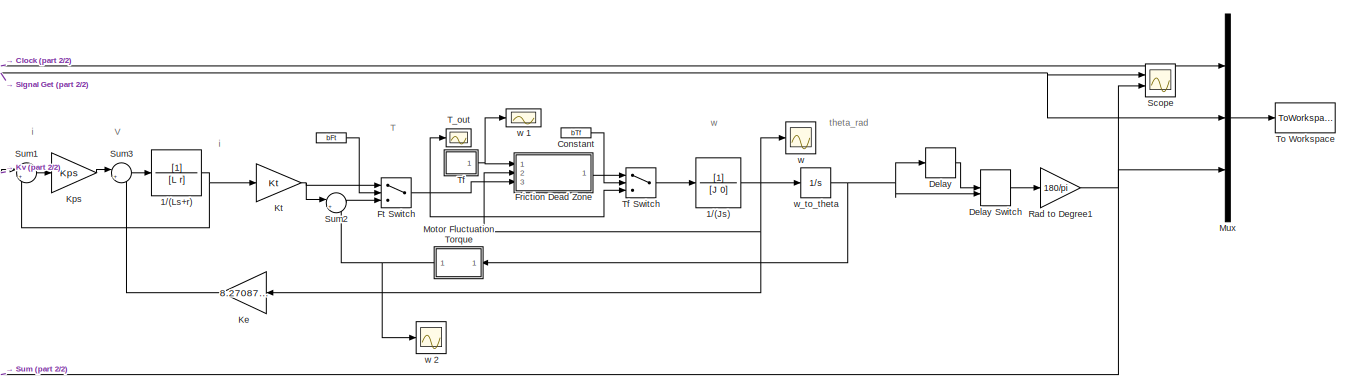
[diagram: root canvas - part 1/2, center side, full height]
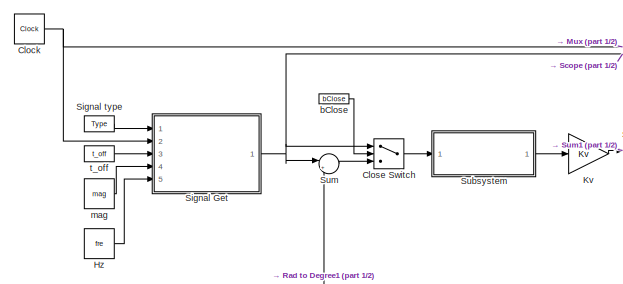
[diagram: root canvas - part 2/2, middle left region]
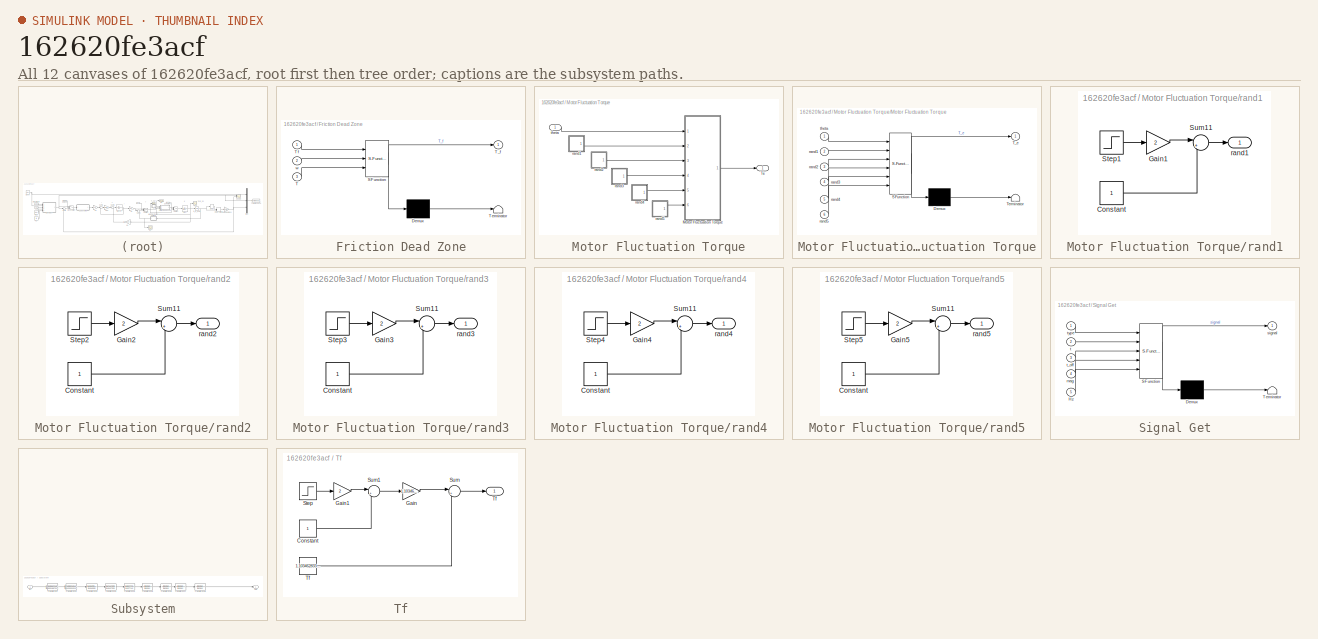
[diagram: thumbnail index - all 12 canvases of the model, root first then tree order]
MODEL slx_162620fe3acf
KIND model
CONFIG AbsTol = auto
CONFIG EnableMultiTasking = off
CONFIG FixedStep = 0.0005
CONFIG MaxStep = auto
CONFIG MinStep = auto
CONFIG RelTol = 1e-3
CONFIG SampleTimeConstraint = Unconstrained
CONFIG Solver = FixedStepAuto
CONFIG SolverName = FixedStepAuto
CONFIG StartTime = 0.0
CONFIG StopTime = 10
BLOCK [Constant]  
  Value = bFt
BLOCK [ManualSwitch]  Delay Switch
  CurrentSetting = 0
BLOCK [Constant]  bClose
  Value = bClose
BLOCK [TransferFcn] 1//(Js)
  Denominator = [J 0]
BLOCK [TransferFcn] 1//(Ls+r)
  Denominator = [L r]
BLOCK [Clock] Clock
  DisplayTime = on
BLOCK [Switch] Close Switch
  Criteria = u2 > Threshold
  InputSameDT = off
  SaturateOnIntegerOverflow = off
BLOCK [Constant] Constant
  Value = bTf
BLOCK [TransportDelay] Delay
  DelayTime = 0.003763900000000
  Ports = [1, 1]
BLOCK [SubSystem] Friction Dead Zone
  ErrorFcn = Stateflow.Translate.translate
  PermitHierarchicalResolution = ExplicitOnly
  Ports = [3, 1]
  RequestExecContextInheritance = off
  SFBlockType = MATLAB Function
  TreatAsAtomicUnit = on
  Variant = off
BLOCK [Demux] Friction Dead Zone/ Demux 
  Outputs = 1
  Ports = [1, 1]
BLOCK [S-Function] Friction Dead Zone/ SFunction 
  EnableBusSupport = on
  FunctionName = sf_sfun
  PortCounts = [3 2]
  Ports = [3, 2]
  SFcnIsStateOwnerBlock = off
  SFunctionDeploymentMode = off
  Tag = Stateflow S-Function Turntable_close 2
BLOCK [Terminator] Friction Dead Zone/ Terminator 
BLOCK [Inport] Friction Dead Zone/T
  IconDisplay = Port number
  Port = 3
BLOCK [Outport] Friction Dead Zone/T_f
  IconDisplay = Port number
BLOCK [Inport] Friction Dead Zone/Tf
  IconDisplay = Port number
BLOCK [Inport] Friction Dead Zone/w
  IconDisplay = Port number
  Port = 2
BLOCK [Switch] Ft Switch
  Criteria = u2 > Threshold
  InputSameDT = off
  SaturateOnIntegerOverflow = off
BLOCK [Constant] Hz
  Value = fre
BLOCK [Gain] Ke
  Gain = 8.270875400213757
  OutDataTypeStr = Inherit: Inherit via internal rule
  ParamDataTypeStr = Inherit: Inherit via internal rule
  SaturateOnIntegerOverflow = off
BLOCK [Gain] Kps
  Gain = Kps
  OutDataTypeStr = Inherit: Inherit via internal rule
  ParamDataTypeStr = Inherit: Inherit via internal rule
  SaturateOnIntegerOverflow = off
BLOCK [Gain] Kt
  Gain = Kt
  OutDataTypeStr = Inherit: Inherit via internal rule
  ParamDataTypeStr = Inherit: Inherit via internal rule
  SaturateOnIntegerOverflow = off
BLOCK [Gain] Kv
  Gain = Kv
  OutDataTypeStr = Inherit: Inherit via internal rule
  ParamDataTypeStr = Inherit: Inherit via internal rule
  SaturateOnIntegerOverflow = off
BLOCK [SubSystem] Motor Fluctuation Torque
  Ports = [1, 1]
  RequestExecContextInheritance = off
  Variant = off
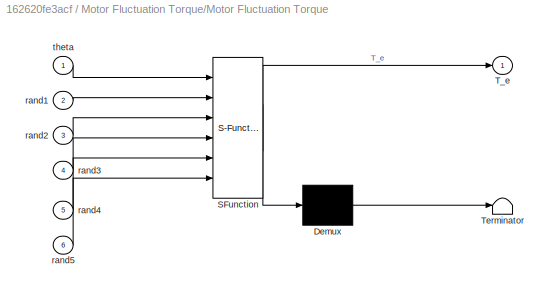
BLOCK [SubSystem] Motor Fluctuation Torque/Motor Fluctuation Torque
  ErrorFcn = Stateflow.Translate.translate
  PermitHierarchicalResolution = ExplicitOnly
  Ports = [6, 1]
  RequestExecContextInheritance = off
  SFBlockType = MATLAB Function
  TreatAsAtomicUnit = on
  Variant = off
BLOCK [Demux] Motor Fluctuation Torque/Motor Fluctuation Torque/ Demux 
  Outputs = 1
  Ports = [1, 1]
BLOCK [S-Function] Motor Fluctuation Torque/Motor Fluctuation Torque/ SFunction 
  EnableBusSupport = on
  FunctionName = sf_sfun
  PortCounts = [6 2]
  Ports = [6, 2]
  SFcnIsStateOwnerBlock = off
  SFunctionDeploymentMode = off
  Tag = Stateflow S-Function Turntable_close 5
BLOCK [Terminator] Motor Fluctuation Torque/Motor Fluctuation Torque/ Terminator 
BLOCK [Outport] Motor Fluctuation Torque/Motor Fluctuation Torque/T_e
  IconDisplay = Port number
BLOCK [Inport] Motor Fluctuation Torque/Motor Fluctuation Torque/rand1
  IconDisplay = Port number
  Port = 2
BLOCK [Inport] Motor Fluctuation Torque/Motor Fluctuation Torque/rand2
  IconDisplay = Port number
  Port = 3
BLOCK [Inport] Motor Fluctuation Torque/Motor Fluctuation Torque/rand3
  IconDisplay = Port number
  Port = 4
BLOCK [Inport] Motor Fluctuation Torque/Motor Fluctuation Torque/rand4
  IconDisplay = Port number
  Port = 5
BLOCK [Inport] Motor Fluctuation Torque/Motor Fluctuation Torque/rand5
  IconDisplay = Port number
  Port = 6
BLOCK [Inport] Motor Fluctuation Torque/Motor Fluctuation Torque/theta
  IconDisplay = Port number
BLOCK [Outport] Motor Fluctuation Torque/Te
  IconDisplay = Port number
BLOCK [SubSystem] Motor Fluctuation Torque/rand1
  Ports = [0, 1]
  RequestExecContextInheritance = off
  Variant = off
BLOCK [Constant] Motor Fluctuation Torque/rand1/Constant
BLOCK [Gain] Motor Fluctuation Torque/rand1/Gain1
  Gain = 2
  OutDataTypeStr = Inherit: Inherit via internal rule
  ParamDataTypeStr = Inherit: Inherit via internal rule
  SaturateOnIntegerOverflow = off
BLOCK [Step] Motor Fluctuation Torque/rand1/Step1
  After = rand
  SampleTime = 0
  Time = 0
BLOCK [Sum] Motor Fluctuation Torque/rand1/Sum11
  IconShape = round
  InputSameDT = off
  Inputs = |+-
  OutDataTypeStr = Inherit: Inherit via internal rule
  Ports = [2, 1]
  SaturateOnIntegerOverflow = off
BLOCK [Outport] Motor Fluctuation Torque/rand1/rand1
  IconDisplay = Port number
BLOCK [SubSystem] Motor Fluctuation Torque/rand2
  Ports = [0, 1]
  RequestExecContextInheritance = off
  Variant = off
BLOCK [Constant] Motor Fluctuation Torque/rand2/Constant
BLOCK [Gain] Motor Fluctuation Torque/rand2/Gain2
  Gain = 2
  OutDataTypeStr = Inherit: Inherit via internal rule
  ParamDataTypeStr = Inherit: Inherit via internal rule
  SaturateOnIntegerOverflow = off
BLOCK [Step] Motor Fluctuation Torque/rand2/Step2
  After = rand
  SampleTime = 0
  Time = 0
BLOCK [Sum] Motor Fluctuation Torque/rand2/Sum11
  IconShape = round
  InputSameDT = off
  Inputs = |+-
  OutDataTypeStr = Inherit: Inherit via internal rule
  Ports = [2, 1]
  SaturateOnIntegerOverflow = off
BLOCK [Outport] Motor Fluctuation Torque/rand2/rand2
  IconDisplay = Port number
BLOCK [SubSystem] Motor Fluctuation Torque/rand3
  Ports = [0, 1]
  RequestExecContextInheritance = off
  Variant = off
BLOCK [Constant] Motor Fluctuation Torque/rand3/Constant
BLOCK [Gain] Motor Fluctuation Torque/rand3/Gain3
  Gain = 2
  OutDataTypeStr = Inherit: Inherit via internal rule
  ParamDataTypeStr = Inherit: Inherit via internal rule
  SaturateOnIntegerOverflow = off
BLOCK [Step] Motor Fluctuation Torque/rand3/Step3
  After = rand
  SampleTime = 0
  Time = 0
BLOCK [Sum] Motor Fluctuation Torque/rand3/Sum11
  IconShape = round
  InputSameDT = off
  Inputs = |+-
  OutDataTypeStr = Inherit: Inherit via internal rule
  Ports = [2, 1]
  SaturateOnIntegerOverflow = off
BLOCK [Outport] Motor Fluctuation Torque/rand3/rand3
  IconDisplay = Port number
BLOCK [SubSystem] Motor Fluctuation Torque/rand4
  Ports = [0, 1]
  RequestExecContextInheritance = off
  Variant = off
BLOCK [Constant] Motor Fluctuation Torque/rand4/Constant
BLOCK [Gain] Motor Fluctuation Torque/rand4/Gain4
  Gain = 2
  OutDataTypeStr = Inherit: Inherit via internal rule
  ParamDataTypeStr = Inherit: Inherit via internal rule
  SaturateOnIntegerOverflow = off
BLOCK [Step] Motor Fluctuation Torque/rand4/Step4
  After = rand
  SampleTime = 0
  Time = 0
BLOCK [Sum] Motor Fluctuation Torque/rand4/Sum11
  IconShape = round
  InputSameDT = off
  Inputs = |+-
  OutDataTypeStr = Inherit: Inherit via internal rule
  Ports = [2, 1]
  SaturateOnIntegerOverflow = off
BLOCK [Outport] Motor Fluctuation Torque/rand4/rand4
  IconDisplay = Port number
BLOCK [SubSystem] Motor Fluctuation Torque/rand5
  Ports = [0, 1]
  RequestExecContextInheritance = off
  Variant = off
BLOCK [Constant] Motor Fluctuation Torque/rand5/Constant
BLOCK [Gain] Motor Fluctuation Torque/rand5/Gain5
  Gain = 2
  OutDataTypeStr = Inherit: Inherit via internal rule
  ParamDataTypeStr = Inherit: Inherit via internal rule
  SaturateOnIntegerOverflow = off
BLOCK [Step] Motor Fluctuation Torque/rand5/Step5
  After = rand
  SampleTime = 0
  Time = 0
BLOCK [Sum] Motor Fluctuation Torque/rand5/Sum11
  IconShape = round
  InputSameDT = off
  Inputs = |+-
  OutDataTypeStr = Inherit: Inherit via internal rule
  Ports = [2, 1]
  SaturateOnIntegerOverflow = off
BLOCK [Outport] Motor Fluctuation Torque/rand5/rand5
  IconDisplay = Port number
BLOCK [Inport] Motor Fluctuation Torque/theta
  IconDisplay = Port number
BLOCK [Mux] Mux
  DisplayOption = bar
  Inputs = 3
  Ports = [3, 1]
BLOCK [Gain] Rad to Degree1
  Gain = 180/pi
  OutDataTypeStr = Inherit: Inherit via internal rule
  ParamDataTypeStr = Inherit: Inherit via internal rule
  SaturateOnIntegerOverflow = off
BLOCK [Scope] Scope
  NumInputPorts = 2
  Ports = [2]
  ScopeSpecificationString = Simulink.scopes.TimeScopeBlockCfg('CurrentConfiguration', extmgr.ConfigurationSet(extmgr.Configuration('Core','General UI',true),extmgr.Configuration('Core','Source UI',true),extmgr.Configuration('Sources','WiredSimulink',true,'DataLoggingVariableName','ScopeData1'),extmgr.Configuration('Visuals','Time Domain',true,'SerializedDisplays',{struct('MinYLimReal','-0.7726','MaxYLimReal','6.95336','YLabe...<+1453ch>
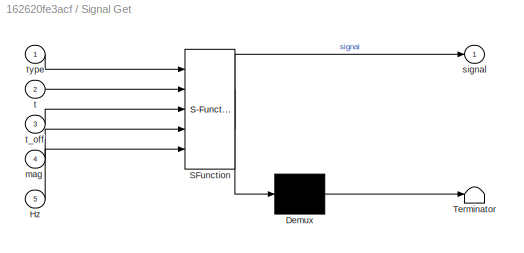
BLOCK [SubSystem] Signal Get
  ErrorFcn = Stateflow.Translate.translate
  PermitHierarchicalResolution = ExplicitOnly
  Ports = [5, 1]
  RequestExecContextInheritance = off
  SFBlockType = MATLAB Function
  TreatAsAtomicUnit = on
  Variant = off
BLOCK [Demux] Signal Get/ Demux 
  Outputs = 1
  Ports = [1, 1]
BLOCK [S-Function] Signal Get/ SFunction 
  EnableBusSupport = on
  FunctionName = sf_sfun
  PortCounts = [5 2]
  Ports = [5, 2]
  SFcnIsStateOwnerBlock = off
  SFunctionDeploymentMode = off
  Tag = Stateflow S-Function Turntable_close 1
BLOCK [Terminator] Signal Get/ Terminator 
BLOCK [Inport] Signal Get/Hz
  IconDisplay = Port number
  Port = 5
BLOCK [Inport] Signal Get/mag
  IconDisplay = Port number
  Port = 4
BLOCK [Outport] Signal Get/signal
  IconDisplay = Port number
BLOCK [Inport] Signal Get/t
  IconDisplay = Port number
  Port = 2
BLOCK [Inport] Signal Get/t_off
  IconDisplay = Port number
  Port = 3
BLOCK [Inport] Signal Get/type
  IconDisplay = Port number
BLOCK [Constant] Signal type
  Value = Type
BLOCK [SubSystem] Subsystem
  Ports = [1, 1]
  RequestExecContextInheritance = off
  Variant = off
BLOCK [Inport] Subsystem/In1
  IconDisplay = Port number
BLOCK [Outport] Subsystem/Out1
  IconDisplay = Port number
BLOCK [TransferFcn] Subsystem/Transfer Fcn
  Denominator = [0.069518879142540, 1.156462324547402e+02, 6.745496069280927e+04]
  Numerator = [1.862855441845868e+03, 4.791184320340544e+05, 4.845577407565945e+05]
BLOCK [TransferFcn] Subsystem/Transfer Fcn1
  Denominator = [0.016326151931854 1]
  Numerator = [0.010884101287903, 1] * 0.633290558182777
BLOCK [TransferFcn] Subsystem/Transfer Fcn2
  Denominator = [1, 15, 4900]
  Numerator = [1, 22.5, 4900]
BLOCK [TransferFcn] Subsystem/Transfer Fcn3
  Denominator = [1, 15, 12769]
  Numerator = [1, 27, 12769]
BLOCK [TransferFcn] Subsystem/Transfer Fcn4
  Denominator = [1, 15, 7744]
  Numerator = [1, 30, 7744]
BLOCK [TransferFcn] Subsystem/Transfer Fcn5
  Denominator = [2.828, 1]
  Numerator = [2.828, 2]
BLOCK [TransferFcn] Subsystem/Transfer Fcn6
  Denominator = [2.828, 1]
  Numerator = [2.828, 2]
BLOCK [TransferFcn] Subsystem/Transfer Fcn7
  Denominator = [2.828, 1]
  Numerator = [2.828, 2]
BLOCK [TransferFcn] Subsystem/Transfer Fcn8
  Denominator = [2.828, 1]
  Numerator = [2.828, 2]
BLOCK [Sum] Sum
  IconShape = round
  InputSameDT = off
  Inputs = |+-
  OutDataTypeStr = Inherit: Inherit via internal rule
  Ports = [2, 1]
  SaturateOnIntegerOverflow = off
BLOCK [Sum] Sum1
  IconShape = round
  InputSameDT = off
  Inputs = |+-
  OutDataTypeStr = Inherit: Inherit via internal rule
  Ports = [2, 1]
  SaturateOnIntegerOverflow = off
BLOCK [Sum] Sum2
  IconShape = round
  InputSameDT = off
  Inputs = |+-
  OutDataTypeStr = Inherit: Inherit via internal rule
  Ports = [2, 1]
  SaturateOnIntegerOverflow = off
BLOCK [Sum] Sum3
  IconShape = round
  InputSameDT = off
  Inputs = |+-
  OutDataTypeStr = Inherit: Inherit via internal rule
  Ports = [2, 1]
  SaturateOnIntegerOverflow = off
BLOCK [Scope] T_out
  NumInputPorts = 1
  Ports = [1]
  ScopeSpecificationString = Simulink.scopes.TimeScopeBlockCfg('CurrentConfiguration', extmgr.ConfigurationSet(extmgr.Configuration('Core','General UI',true),extmgr.Configuration('Core','Source UI',true),extmgr.Configuration('Sources','WiredSimulink',true,'DataLoggingVariableName','ScopeData1','DataLoggingLimitDataPoints',true,'DataLoggingSaveFormat','Array','DataLoggingDecimation','1','DataLoggingDecimateData',true),extmgr.C...<+1492ch>
BLOCK [SubSystem] Tf
  Ports = [0, 1]
  RequestExecContextInheritance = off
  Variant = off
BLOCK [Switch] Tf Switch
  Criteria = u2 > Threshold
  InputSameDT = off
  SaturateOnIntegerOverflow = off
BLOCK [Constant] Tf/Constant
BLOCK [Gain] Tf/Gain
  Gain = 1.103462833914234*0.05767332
  OutDataTypeStr = Inherit: Inherit via internal rule
  ParamDataTypeStr = Inherit: Inherit via internal rule
  SaturateOnIntegerOverflow = off
BLOCK [Gain] Tf/Gain1
  Gain = 2
  OutDataTypeStr = Inherit: Inherit via internal rule
  ParamDataTypeStr = Inherit: Inherit via internal rule
  SaturateOnIntegerOverflow = off
BLOCK [Step] Tf/Step
  After = rand
  SampleTime = 0
  Time = 0
BLOCK [Sum] Tf/Sum
  IconShape = round
  InputSameDT = off
  Inputs = |++
  OutDataTypeStr = Inherit: Inherit via internal rule
  Ports = [2, 1]
  SaturateOnIntegerOverflow = off
BLOCK [Sum] Tf/Sum1
  IconShape = round
  InputSameDT = off
  Inputs = |+-
  OutDataTypeStr = Inherit: Inherit via internal rule
  Ports = [2, 1]
  SaturateOnIntegerOverflow = off
BLOCK [Outport] Tf/Tf
  IconDisplay = Port number
BLOCK [Constant] Tf/Tf 
  Value = 1.103462833914234 * 1
  VectorParams1D = off
BLOCK [ToWorkspace] To Workspace
  FixptAsFi = on
  MaxDataPoints = inf
  Ports = [1]
  SampleTime = -1
  Save2DSignal = 3-D array (concatenate along third dimension)
  VariableName = in_out
BLOCK [Constant] mag
  Value = mag
BLOCK [Constant] t_off
  Value = t_off
BLOCK [Scope] w 
  NumInputPorts = 1
  Ports = [1]
  ScopeSpecificationString = Simulink.scopes.TimeScopeBlockCfg('CurrentConfiguration', extmgr.ConfigurationSet(extmgr.Configuration('Core','General UI',true),extmgr.Configuration('Core','Source UI',true),extmgr.Configuration('Sources','WiredSimulink',true,'DataLoggingLimitDataPoints',true,'DataLoggingSaveFormat','Array','DataLoggingDecimation','1','DataLoggingDecimateData',true,'DataLoggingVariableName','ScopeData3'),extmgr.C...<+1490ch>
BLOCK [Scope] w 1
  NumInputPorts = 1
  Ports = [1]
  ScopeSpecificationString = Simulink.scopes.TimeScopeBlockCfg('CurrentConfiguration', extmgr.ConfigurationSet(extmgr.Configuration('Core','General UI',true),extmgr.Configuration('Core','Source UI',true),extmgr.Configuration('Sources','WiredSimulink',true,'DataLoggingLimitDataPoints',true,'DataLoggingSaveFormat','Array','DataLoggingDecimation','1','DataLoggingDecimateData',true,'DataLoggingVariableName','ScopeData1'),extmgr.C...<+1532ch>
BLOCK [Scope] w 2
  NumInputPorts = 1
  Ports = [1]
  ScopeSpecificationString = Simulink.scopes.TimeScopeBlockCfg('CurrentConfiguration', extmgr.ConfigurationSet(extmgr.Configuration('Core','General UI',true),extmgr.Configuration('Core','Source UI',true),extmgr.Configuration('Sources','WiredSimulink',true,'DataLoggingLimitDataPoints',true,'DataLoggingSaveFormat','Array','DataLoggingDecimation','1','DataLoggingDecimateData',true,'DataLoggingVariableName','ScopeData2'),extmgr.C...<+1535ch>
BLOCK [Integrator] w_to_theta
  Ports = [1, 1]
ANNOTATION (root): T
ANNOTATION (root): V
ANNOTATION (root): i
ANNOTATION (root): theta_rad
ANNOTATION (root): w
LINE  :1 -> Ft Switch:2
LINE  Delay Switch:1 -> Rad to Degree1:1
LINE  bClose:1 -> Close Switch:2
NET 1//(Js):1 -> Friction Dead Zone:2, Ke:1, w :1, w_to_theta:1
NET 1//(Ls+r):1 -> Kt:1, Sum1:2
NET Clock:1 -> Mux:1, Signal Get:2
LINE Close Switch:1 -> Subsystem:1
LINE Constant:1 -> Tf Switch:2
LINE Delay:1 ->  Delay Switch:1
LINE Friction Dead Zone:1 -> Tf Switch:1
NET Ft Switch:1 -> Friction Dead Zone:3, T_out:1, Tf Switch:3
LINE Hz:1 -> Signal Get:5
LINE Ke:1 -> Sum3:2
LINE Kps:1 -> Sum3:1
NET Kt:1 -> Ft Switch:1, Sum2:1
LINE Kv:1 -> Sum1:1
LINE Motor Fluctuation Torque/Motor Fluctuation Torque:1 -> Motor Fluctuation Torque/Te:1
LINE Motor Fluctuation Torque/rand1/Constant:1 -> Motor Fluctuation Torque/rand1/Sum11:2
LINE Motor Fluctuation Torque/rand1/Gain1:1 -> Motor Fluctuation Torque/rand1/Sum11:1
LINE Motor Fluctuation Torque/rand1/Step1:1 -> Motor Fluctuation Torque/rand1/Gain1:1
LINE Motor Fluctuation Torque/rand1/Sum11:1 -> Motor Fluctuation Torque/rand1/rand1:1
LINE Motor Fluctuation Torque/rand1:1 -> Motor Fluctuation Torque/Motor Fluctuation Torque:2
LINE Motor Fluctuation Torque/rand2/Constant:1 -> Motor Fluctuation Torque/rand2/Sum11:2
LINE Motor Fluctuation Torque/rand2/Gain2:1 -> Motor Fluctuation Torque/rand2/Sum11:1
LINE Motor Fluctuation Torque/rand2/Step2:1 -> Motor Fluctuation Torque/rand2/Gain2:1
LINE Motor Fluctuation Torque/rand2/Sum11:1 -> Motor Fluctuation Torque/rand2/rand2:1
LINE Motor Fluctuation Torque/rand2:1 -> Motor Fluctuation Torque/Motor Fluctuation Torque:3
LINE Motor Fluctuation Torque/rand3/Constant:1 -> Motor Fluctuation Torque/rand3/Sum11:2
LINE Motor Fluctuation Torque/rand3/Gain3:1 -> Motor Fluctuation Torque/rand3/Sum11:1
LINE Motor Fluctuation Torque/rand3/Step3:1 -> Motor Fluctuation Torque/rand3/Gain3:1
LINE Motor Fluctuation Torque/rand3/Sum11:1 -> Motor Fluctuation Torque/rand3/rand3:1
LINE Motor Fluctuation Torque/rand3:1 -> Motor Fluctuation Torque/Motor Fluctuation Torque:4
LINE Motor Fluctuation Torque/rand4/Constant:1 -> Motor Fluctuation Torque/rand4/Sum11:2
LINE Motor Fluctuation Torque/rand4/Gain4:1 -> Motor Fluctuation Torque/rand4/Sum11:1
LINE Motor Fluctuation Torque/rand4/Step4:1 -> Motor Fluctuation Torque/rand4/Gain4:1
LINE Motor Fluctuation Torque/rand4/Sum11:1 -> Motor Fluctuation Torque/rand4/rand4:1
LINE Motor Fluctuation Torque/rand4:1 -> Motor Fluctuation Torque/Motor Fluctuation Torque:5
LINE Motor Fluctuation Torque/rand5/Constant:1 -> Motor Fluctuation Torque/rand5/Sum11:2
LINE Motor Fluctuation Torque/rand5/Gain5:1 -> Motor Fluctuation Torque/rand5/Sum11:1
LINE Motor Fluctuation Torque/rand5/Step5:1 -> Motor Fluctuation Torque/rand5/Gain5:1
LINE Motor Fluctuation Torque/rand5/Sum11:1 -> Motor Fluctuation Torque/rand5/rand5:1
LINE Motor Fluctuation Torque/rand5:1 -> Motor Fluctuation Torque/Motor Fluctuation Torque:6
LINE Motor Fluctuation Torque/theta:1 -> Motor Fluctuation Torque/Motor Fluctuation Torque:1
NET Motor Fluctuation Torque:1 -> Sum2:2, w 2:1
LINE Mux:1 -> To Workspace:1
NET Rad to Degree1:1 -> Mux:3, Scope:2, Sum:2
NET Signal Get:1 -> Close Switch:1, Mux:2, Scope:1, Sum:1
LINE Signal type:1 -> Signal Get:1
LINE Subsystem/In1:1 -> Subsystem/Transfer Fcn:1
LINE Subsystem/Transfer Fcn1:1 -> Subsystem/Transfer Fcn2:1
LINE Subsystem/Transfer Fcn2:1 -> Subsystem/Transfer Fcn3:1
LINE Subsystem/Transfer Fcn3:1 -> Subsystem/Transfer Fcn4:1
LINE Subsystem/Transfer Fcn4:1 -> Subsystem/Transfer Fcn5:1
LINE Subsystem/Transfer Fcn5:1 -> Subsystem/Transfer Fcn6:1
LINE Subsystem/Transfer Fcn6:1 -> Subsystem/Transfer Fcn7:1
LINE Subsystem/Transfer Fcn7:1 -> Subsystem/Transfer Fcn8:1
LINE Subsystem/Transfer Fcn8:1 -> Subsystem/Out1:1
LINE Subsystem/Transfer Fcn:1 -> Subsystem/Transfer Fcn1:1
LINE Subsystem:1 -> Kv:1
LINE Sum1:1 -> Kps:1
LINE Sum2:1 -> Ft Switch:3
LINE Sum3:1 -> 1//(Ls+r):1
LINE Sum:1 -> Close Switch:3
LINE Tf Switch:1 -> 1//(Js):1
LINE Tf/Constant:1 -> Tf/Sum1:2
LINE Tf/Gain1:1 -> Tf/Sum1:1
LINE Tf/Gain:1 -> Tf/Sum:1
LINE Tf/Step:1 -> Tf/Gain1:1
LINE Tf/Sum1:1 -> Tf/Gain:1
LINE Tf/Sum:1 -> Tf/Tf:1
LINE Tf/Tf :1 -> Tf/Sum:2
NET Tf:1 -> Friction Dead Zone:1, w 1:1
LINE mag:1 -> Signal Get:4
LINE t_off:1 -> Signal Get:3
NET w_to_theta:1 ->  Delay Switch:2, Delay:1, Motor Fluctuation Torque:1
note: NET lines group one-source signal fan-out (src -> all destinations, sorted); 1:1 wires keep LINE
CHART Signal Get states=1 transitions=1
  STATE_LABEL 'eML_blk_kernel()'
  STATE_LABEL 'SCRIPT:\nfunction signal = fcn(type, t, t_off, mag, Hz)\nsignal = 0;\nswitch type\n    case 1\n        w = 2 * pi * Hz;\n        if((t >= 0) && (t < 1))\n            signal = t * mag * sin(w * t);\n        elseif((t >= 1) && (t < t_off - 1))\n            signal = mag * sin(w * t);\n        elseif((t >= (t_off - 1)) && (t < t_off))\n            signal = -mag * (t - t_off) * sin(w * t);\n        else\n          ...<+307ch>'
CHART Friction Dead Zone states=1 transitions=1
  STATE_LABEL 'eML_blk_kernel()'
  STATE_LABEL 'SCRIPT:\nfunction T_f = fcn(Tf,w,T)\nif w==0\n    if abs(T)<abs(Tf)\n        T_f = 0;\n    else\n        T_f=sign(T)*(abs(T)-Tf);\n    end\nelseif w*T<0\n    T_f=sign(T)*(abs(T)+Tf);\nelse \n        if abs(T)<abs(Tf)\n            T_f = -sign(w)*(Tf-abs(T));\n        else\n            T_f=sign(T)*(abs(T)-Tf);\n        end\n\nend\nend\n\n\n'
CHART Motor Fluctuation Torque/Motor Fluctuation Torque states=1 transitions=1
  STATE_LABEL 'eML_blk_kernel()'
  STATE_LABEL 'SCRIPT:\nfunction T_e = fcn(theta,rand1,rand2,rand3,rand4,rand5)\nT_p =0.432273269433135*(1+rand1*0.012015015613962)*cos(theta*7 +(48.13841636+0.050850865438431)*pi/180);\nT_2p=0.035501355062786*(1+rand2*0.032198449030114)*cos(theta*14+(30.38979755+0.101746126073106)*pi/180);\nT_4p=0.018930935537422*(1+rand3*0.028225982587057)*cos(theta*28+(285.7823597+0.203848223609672)*pi/180);\nT_6p=0.01221824387972...<+236ch>'
